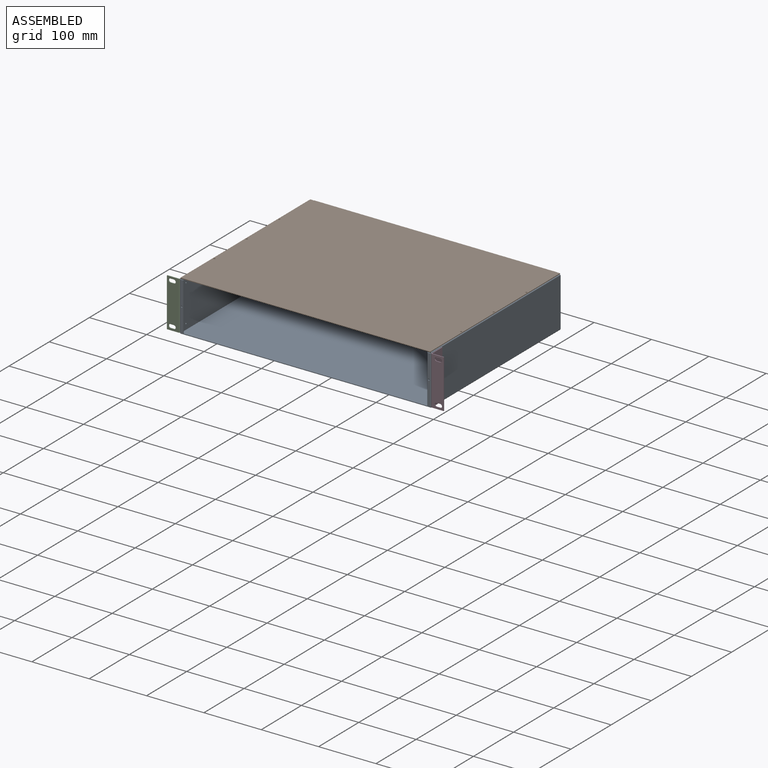
[diagram: assembled view]
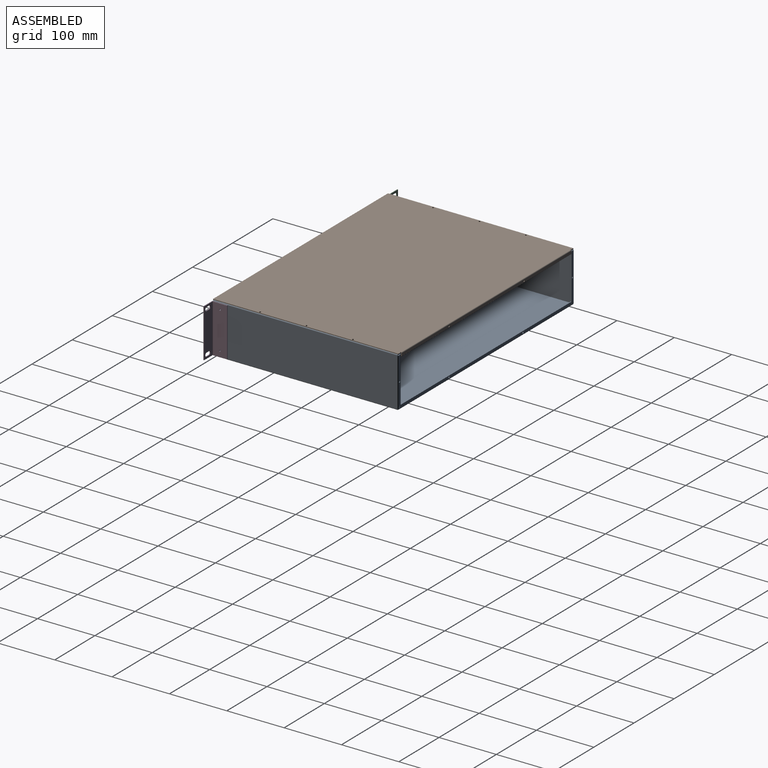
[diagram: assembled view, second angle]
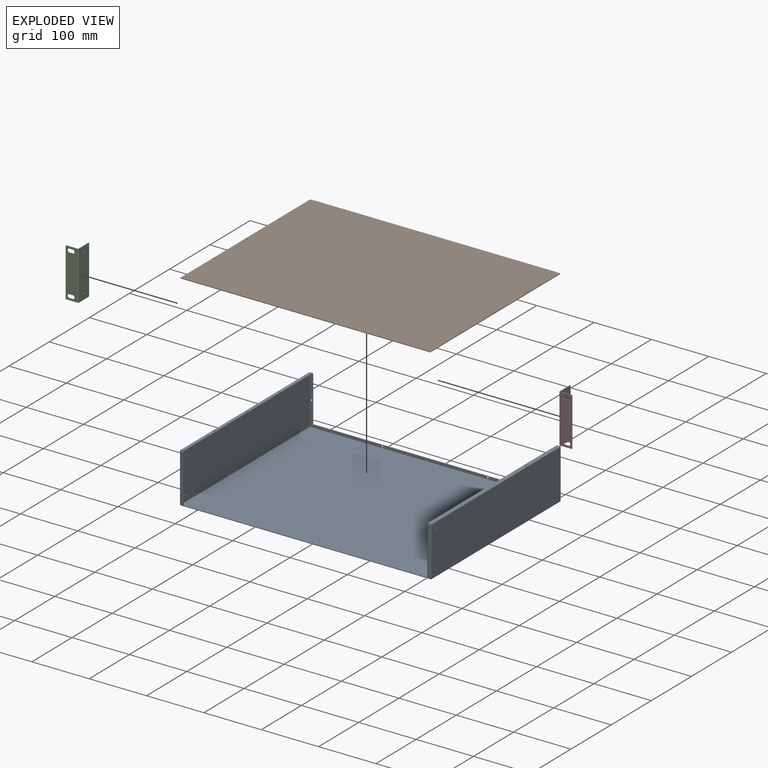
[diagram: exploded view]
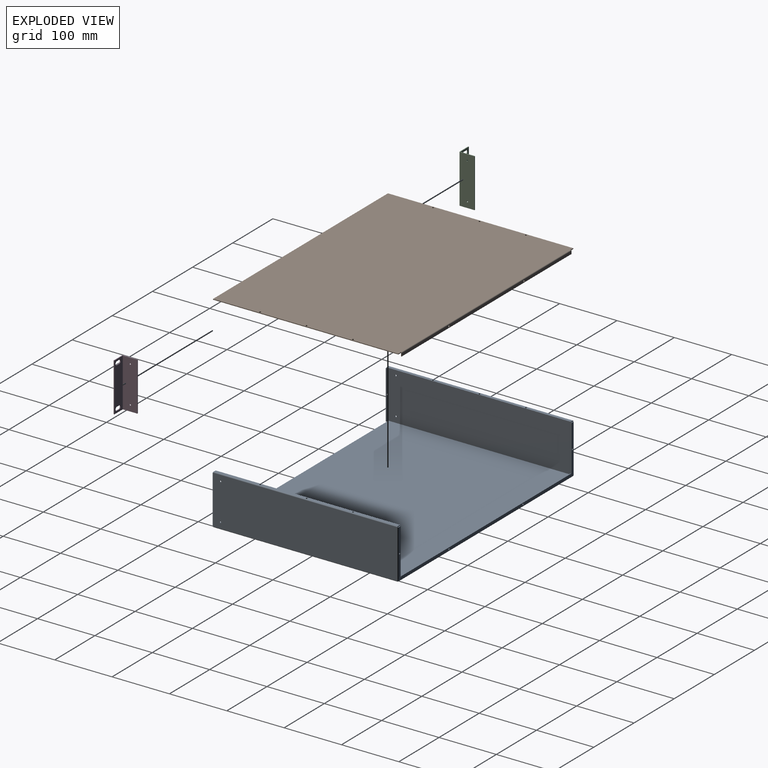
[diagram: exploded view, second angle]
ASSEMBLY  parts=4 mates=3
PART A: 110 faces, bbox 438.2x323.9x87.4 mm
  f0: plane 1.3x0.18mm, normal (0,1,0), area 0.2mm2, adj f19,f32,f33,f87
  f1: plane 1.3x0.03mm, normal (-1,0,0), area 0mm2, adj f5,f6,f7,f24
  f2: plane 1.3x0.18mm, normal (0,1,0), area 0.2mm2, adj f6,f7,f15,f23
  f3: plane 1.3x0.18mm, normal (0,1,0), area 0.2mm2, adj f6,f7,f16,f19
  f4: plane 1.3x0.03mm, normal (1,0,0), area 0mm2, adj f5,f6,f7,f20
  f5: plane 435.53x1.3mm, normal (0,-1,0), area 564.2mm2, adj f1,f4,f6,f7
  f6: plane 435.53x321.23mm, normal (0,0,-1), area 139908.2mm2, adj f1,f2,f3,f4,f5,f17,f21,f25
  f7: plane 435.53x321.23mm, normal (0,0,1), area 139908.2mm2, adj f1,f2,f3,f4,f5,f18,f22,f26
  f8: plane 425.12x1.3mm, normal (0,0,1), area 550.7mm2, adj f9,f12,f13,f14
  f9: plane 5.03x5.03mm, normal (0.71,0,0.71), area 9.2mm2, adj f8,f13,f14,f16
  f10: cylinder r=1.42mm len=2.85mm, axis (0,1,0), area 11.6mm2, adj f13,f14
  f11: cylinder r=1.42mm len=2.85mm, axis (0,1,0), area 11.6mm2, adj f13,f14
  f12: plane 5.03x5.03mm, normal (-0.71,0,0.71), area 9.2mm2, adj f8,f13,f14,f15
  f13: plane 435.17x5.03mm, normal (0,1,0), area 2150.6mm2, adj f8,f9,f10,f11,f12,f17
  f14: plane 435.17x5.03mm, normal (0,-1,0), area 2150.6mm2, adj f8,f9,f10,f11,f12,f18
  f15: plane 1.32x1.32mm, normal (-1,0,0), area 1.4mm2, adj f2,f12,f17,f18
  f16: plane 1.32x1.32mm, normal (1,0,0), area 1.4mm2, adj f3,f9,f17,f18
  f17: cylinder r=1.32mm len=435.17mm, axis (-1,0,0), area 902.9mm2, adj f6,f13,f15,f16
  f18: cylinder r=0.03mm len=435.17mm, axis (-1,0,0), area 17.4mm2, adj f7,f14,f15,f16
  f19: plane 1.32x1.32mm, normal (0,1,0), area 1.4mm2, adj f0,f3,f21,f22
  f20: plane 1.32x1.32mm, normal (0,-1,0), area 1.4mm2, adj f4,f21,f22,f29
  f21: cylinder r=1.32mm len=321.21mm, axis (0,1,0), area 666.4mm2, adj f6,f19,f20,f32
  f22: cylinder r=0.03mm len=321.21mm, axis (0,1,0), area 12.8mm2, adj f7,f19,f20,f33
  f23: plane 1.32x1.32mm, normal (0,1,0), area 1.4mm2, adj f2,f25,f26,f50
  f24: plane 1.32x1.32mm, normal (0,-1,0), area 1.4mm2, adj f1,f25,f26,f53
  f25: cylinder r=1.32mm len=321.21mm, axis (0,1,0), area 666.4mm2, adj f6,f23,f24,f54
  f26: cylinder r=0.03mm len=321.21mm, axis (0,1,0), area 12.8mm2, adj f7,f23,f24,f55
  f27: plane 1.3x0.23mm, normal (0,1,0), area 0.3mm2, adj f32,f33,f44,f86
  f28: plane 1.3x0.23mm, normal (0,-1,0), area 0.3mm2, adj f32,f33,f45,f107
  f29: plane 1.3x0.23mm, normal (0,-1,0), area 0.3mm2, adj f20,f32,f33,f106
  f30: cylinder r=1.27mm len=2.54mm, axis (-1,0,0), area 10.3mm2, adj f32,f33
  f31: cylinder r=1.27mm len=2.54mm, axis (-1,0,0), area 10.3mm2, adj f32,f33
  f32: plane 321.21x84.71mm, normal (1,0,0), area 27199.1mm2, adj f0,f21,f27,f28,f29,f30,f31,f46
  f33: plane 321.21x84.71mm, normal (-1,0,0), area 27199.1mm2, adj f0,f22,f27,f28,f29,f30,f31,f47
  f34: plane 1.3x0.03mm, normal (1,0,0), area 0mm2, adj f36,f42,f43,f45
  f35: plane 321.26x1.3mm, normal (-1,0,0), area 416.2mm2, adj f36,f41,f42,f43
  f36: plane 5.03x1.3mm, normal (0,-1,0), area 6.5mm2, adj f34,f35,f42,f43
  f37: plane 1.3x0.03mm, normal (1,0,0), area 0mm2, adj f41,f42,f43,f44
  f38: cylinder r=1.42mm len=2.85mm, axis (0,0,1), area 11.6mm2, adj f42,f43
  f39: cylinder r=1.42mm len=2.85mm, axis (0,0,1), area 11.6mm2, adj f42,f43
  f40: cylinder r=1.42mm len=2.85mm, axis (0,0,1), area 11.6mm2, adj f42,f43
  f41: plane 5.03x1.3mm, normal (0,1,0), area 6.5mm2, adj f35,f37,f42,f43
  f42: plane 321.26x5.03mm, normal (0,0,1), area 1596.6mm2, adj f34,f35,f36,f37,f38,f39,f40,f41
  f43: plane 321.26x5.03mm, normal (0,0,-1), area 1596.6mm2, adj f34,f35,f36,f37,f38,f39,f40,f41
  f44: plane 1.32x1.32mm, normal (0,1,0), area 1.4mm2, adj f27,f37,f46,f47
  f45: plane 1.32x1.32mm, normal (0,-1,0), area 1.4mm2, adj f28,f34,f46,f47
  f46: cylinder r=1.32mm len=321.21mm, axis (0,1,0), area 666.4mm2, adj f32,f42,f44,f45
  f47: cylinder r=0.03mm len=321.21mm, axis (0,1,0), area 12.8mm2, adj f33,f43,f44,f45
  f48: plane 1.3x0.23mm, normal (0,-1,0), area 0.3mm2, adj f54,f55,f67,f96
  f49: plane 1.3x0.23mm, normal (0,1,0), area 0.3mm2, adj f54,f55,f66,f77
  f50: plane 1.3x0.18mm, normal (0,1,0), area 0.2mm2, adj f23,f54,f55,f76
  f51: cylinder r=1.27mm len=2.54mm, axis (-1,0,0), area 10.3mm2, adj f54,f55
  f52: cylinder r=1.27mm len=2.54mm, axis (-1,0,0), area 10.3mm2, adj f54,f55
  f53: plane 1.3x0.23mm, normal (0,-1,0), area 0.3mm2, adj f24,f54,f55,f97
  f54: plane 321.21x84.71mm, normal (-1,0,0), area 27199.1mm2, adj f25,f48,f49,f50,f51,f52,f53,f68
  f55: plane 321.21x84.71mm, normal (1,0,0), area 27199.1mm2, adj f26,f48,f49,f50,f51,f52,f53,f69
  f56: plane 1.3x0.03mm, normal (-1,0,0), area 0mm2, adj f58,f64,f65,f66
  f57: plane 321.26x1.3mm, normal (1,0,0), area 416.2mm2, adj f58,f63,f64,f65
  f58: plane 5.03x1.3mm, normal (0,1,0), area 6.5mm2, adj f56,f57,f64,f65
  f59: plane 1.3x0.03mm, normal (-1,0,0), area 0mm2, adj f63,f64,f65,f67
  f60: cylinder r=1.42mm len=2.85mm, axis (0,0,1), area 11.6mm2, adj f64,f65
  f61: cylinder r=1.42mm len=2.85mm, axis (0,0,1), area 11.6mm2, adj f64,f65
  f62: cylinder r=1.42mm len=2.85mm, axis (0,0,1), area 11.6mm2, adj f64,f65
  f63: plane 5.03x1.3mm, normal (0,-1,0), area 6.5mm2, adj f57,f59,f64,f65
  f64: plane 321.26x5.03mm, normal (0,0,1), area 1596.6mm2, adj f56,f57,f58,f59,f60,f61,f62,f63
  f65: plane 321.26x5.03mm, normal (0,0,-1), area 1596.6mm2, adj f56,f57,f58,f59,f60,f61,f62,f63
  f66: plane 1.32x1.32mm, normal (0,1,0), area 1.4mm2, adj f49,f56,f68,f69
  f67: plane 1.32x1.32mm, normal (0,-1,0), area 1.4mm2, adj f48,f59,f68,f69
  f68: cylinder r=1.32mm len=321.21mm, axis (0,1,0), area 666.4mm2, adj f54,f64,f66,f67
  f69: cylinder r=0.03mm len=321.21mm, axis (0,1,0), area 12.8mm2, adj f55,f65,f66,f67
  f70: plane 79.27x1.3mm, normal (1,0,0), area 102.7mm2, adj f71,f73,f74,f75
  f71: plane 5.03x5.03mm, normal (0.71,0,-0.71), area 9.2mm2, adj f70,f74,f75,f76
  f72: cylinder r=1.42mm len=2.85mm, axis (0,1,0), area 11.6mm2, adj f74,f75
  f73: plane 5.03x1.3mm, normal (0,0,1), area 6.5mm2, adj f70,f74,f75,f77
  f74: plane 84.3x5.03mm, normal (0,1,0), area 405mm2, adj f70,f71,f72,f73,f78
  f75: plane 84.3x5.03mm, normal (0,-1,0), area 405mm2, adj f70,f71,f72,f73,f79
  f76: plane 1.32x1.32mm, normal (0,0,-1), area 1.4mm2, adj f50,f71,f78,f79
  f77: plane 1.32x1.32mm, normal (0,0,1), area 1.4mm2, adj f49,f73,f78,f79
  f78: cylinder r=1.32mm len=84.3mm, axis (0,0,-1), area 174.9mm2, adj f54,f74,f76,f77
  f79: cylinder r=0.03mm len=84.3mm, axis (0,0,-1), area 3.4mm2, adj f55,f75,f76,f77
  f80: plane 79.27x1.3mm, normal (-1,0,0), area 102.7mm2, adj f81,f83,f84,f85
  f81: plane 5.03x1.3mm, normal (0,0,1), area 6.5mm2, adj f80,f84,f85,f86
  f82: cylinder r=1.42mm len=2.85mm, axis (0,1,0), area 11.6mm2, adj f84,f85
  f83: plane 5.03x5.03mm, normal (-0.71,0,-0.71), area 9.2mm2, adj f80,f84,f85,f87
  f84: plane 84.3x5.03mm, normal (0,1,0), area 405mm2, adj f80,f81,f82,f83,f88
  f85: plane 84.3x5.03mm, normal (0,-1,0), area 405mm2, adj f80,f81,f82,f83,f89
  f86: plane 1.32x1.32mm, normal (0,0,1), area 1.4mm2, adj f27,f81,f88,f89
  f87: plane 1.32x1.32mm, normal (0,0,-1), area 1.4mm2, adj f0,f83,f88,f89
  f88: cylinder r=1.32mm len=84.3mm, axis (0,0,1), area 174.9mm2, adj f32,f84,f86,f87
  f89: cylinder r=0.03mm len=84.3mm, axis (0,0,1), area 3.4mm2, adj f33,f85,f86,f87
  f90: plane 84.25x1.3mm, normal (1,0,0), area 109.1mm2, adj f91,f93,f94,f95
  f91: plane 5.03x1.3mm, normal (0,0,1), area 6.5mm2, adj f90,f94,f95,f96
  f92: cylinder r=1.42mm len=2.85mm, axis (0,-1,0), area 11.6mm2, adj f94,f95
  f93: plane 5.03x1.3mm, normal (0,0,-1), area 6.5mm2, adj f90,f94,f95,f97
  f94: plane 84.25x5.03mm, normal (0,-1,0), area 417.4mm2, adj f90,f91,f92,f93,f98
  f95: plane 84.25x5.03mm, normal (0,1,0), area 417.4mm2, adj f90,f91,f92,f93,f99
  f96: plane 1.32x1.32mm, normal (0,0,1), area 1.4mm2, adj f48,f91,f98,f99
  f97: plane 1.32x1.32mm, normal (0,0,-1), area 1.4mm2, adj f53,f93,f98,f99
  f98: cylinder r=1.32mm len=84.25mm, axis (0,0,1), area 174.8mm2, adj f54,f94,f96,f97
  f99: cylinder r=0.03mm len=84.25mm, axis (0,0,1), area 3.4mm2, adj f55,f95,f96,f97
  f100: plane 84.25x1.3mm, normal (-1,0,0), area 109.1mm2, adj f101,f103,f104,f105
  f101: plane 5.03x1.3mm, normal (0,0,-1), area 6.5mm2, adj f100,f104,f105,f106
  f102: cylinder r=1.42mm len=2.85mm, axis (0,-1,0), area 11.6mm2, adj f104,f105
  f103: plane 5.03x1.3mm, normal (0,0,1), area 6.5mm2, adj f100,f104,f105,f107
  f104: plane 84.25x5.03mm, normal (0,-1,0), area 417.4mm2, adj f100,f101,f102,f103,f108
  f105: plane 84.25x5.03mm, normal (0,1,0), area 417.4mm2, adj f100,f101,f102,f103,f109
  f106: plane 1.32x1.32mm, normal (0,0,-1), area 1.4mm2, adj f29,f101,f108,f109
  f107: plane 1.32x1.32mm, normal (0,0,1), area 1.4mm2, adj f28,f103,f108,f109
  f108: cylinder r=1.32mm len=84.25mm, axis (0,0,-1), area 174.8mm2, adj f32,f104,f106,f107
  f109: cylinder r=0.03mm len=84.25mm, axis (0,0,-1), area 3.4mm2, adj f33,f105,f106,f107
PART B: 30 faces, bbox 435.6x324.6x6.4 mm
  f0: plane 4.97x1.3mm, normal (0,1,0), area 6.4mm2, adj f1,f2,f6,f18
  f1: plane 435.58x323.24mm, normal (0,0,1), area 140756.8mm2, adj f0,f3,f4,f5,f6,f7,f8,f9
  f2: plane 435.58x323.24mm, normal (0,0,-1), area 140756.8mm2, adj f0,f3,f4,f5,f6,f7,f8,f9
  f3: plane 4.97x1.3mm, normal (0,1,0), area 6.4mm2, adj f1,f2,f4,f14
  f4: plane 323.24x1.3mm, normal (-1,0,0), area 418.7mm2, adj f1,f2,f3,f5
  f5: plane 435.58x1.3mm, normal (0,-1,0), area 564.3mm2, adj f1,f2,f4,f6
  f6: plane 323.24x1.3mm, normal (1,0,0), area 418.7mm2, adj f0,f1,f2,f5
  f7: cylinder r=1.46mm len=2.92mm, axis (0,0,1), area 11.9mm2, adj f1,f2
  f8: cylinder r=1.46mm len=2.92mm, axis (0,0,1), area 11.9mm2, adj f1,f2
  f9: cylinder r=1.46mm len=2.92mm, axis (0,0,1), area 11.9mm2, adj f1,f2
  f10: cylinder r=1.46mm len=2.92mm, axis (0,0,1), area 11.9mm2, adj f1,f2
  f11: cylinder r=1.46mm len=2.92mm, axis (0,0,1), area 11.9mm2, adj f1,f2
  f12: cylinder r=1.46mm len=2.92mm, axis (0,0,1), area 11.9mm2, adj f1,f2
  f13: cylinder r=0.69mm len=1.38mm, axis (0,0,-1), area 2.8mm2, adj f1,f2,f14,f15
  f14: plane 1.3x0.03mm, normal (1,0,0), area 0mm2, adj f1,f2,f3,f13
  f15: plane 1.3x0.03mm, normal (-1,0,0), area 0mm2, adj f1,f2,f13,f26
  f16: cylinder r=0.69mm len=1.38mm, axis (0,0,-1), area 2.8mm2, adj f1,f2,f17,f18
  f17: plane 1.3x0.03mm, normal (1,0,0), area 0mm2, adj f1,f2,f16,f27
  f18: plane 1.3x0.03mm, normal (-1,0,0), area 0mm2, adj f0,f1,f2,f16
  f19: plane 422.88x1.3mm, normal (0,0,-1), area 547.8mm2, adj f20,f23,f24,f25
  f20: plane 5.03x1.3mm, normal (-1,0,0), area 6.5mm2, adj f19,f24,f25,f26
  f21: cylinder r=1.42mm len=2.85mm, axis (0,1,0), area 11.6mm2, adj f24,f25
  f22: cylinder r=1.42mm len=2.85mm, axis (0,1,0), area 11.6mm2, adj f24,f25
  f23: plane 5.03x1.3mm, normal (1,0,0), area 6.5mm2, adj f19,f24,f25,f27
  f24: plane 422.88x5.03mm, normal (0,1,0), area 2114.1mm2, adj f19,f20,f21,f22,f23,f28
  f25: plane 422.88x5.03mm, normal (0,-1,0), area 2114.1mm2, adj f19,f20,f21,f22,f23,f29
  f26: plane 1.32x1.32mm, normal (-1,0,0), area 1.4mm2, adj f15,f20,f28,f29
  f27: plane 1.32x1.32mm, normal (1,0,0), area 1.4mm2, adj f17,f23,f28,f29
  f28: cylinder r=1.32mm len=422.88mm, axis (-1,0,0), area 877.4mm2, adj f1,f24,f26,f27
  f29: cylinder r=0.03mm len=422.88mm, axis (-1,0,0), area 16.9mm2, adj f2,f25,f26,f27
PART C: 26 faces, bbox 22.2x26.7x84.8 mm
  f0: plane 25.37x1.3mm, normal (0,0,-1), area 32.9mm2, adj f1,f5,f6,f22
  f1: plane 84.76x1.3mm, normal (0,1,0), area 109.8mm2, adj f0,f2,f5,f6
  f2: plane 25.37x1.3mm, normal (0,0,1), area 32.9mm2, adj f1,f5,f6,f23
  f3: cylinder r=1.27mm len=2.54mm, axis (-1,0,0), area 10.3mm2, adj f5,f6
  f4: cylinder r=1.27mm len=2.54mm, axis (-1,0,0), area 10.3mm2, adj f5,f6
  f5: plane 84.76x25.37mm, normal (1,0,0), area 2140.6mm2, adj f0,f1,f2,f3,f4,f24
  f6: plane 84.76x25.37mm, normal (-1,0,0), area 2140.6mm2, adj f0,f1,f2,f3,f4,f25
  f7: cylinder r=3.17mm len=6.35mm, axis (0,-1,0), area 12.9mm2, adj f8,f17,f18,f19
  f8: plane 6.1x1.3mm, normal (0,0,1), area 7.9mm2, adj f7,f9,f18,f19
  f9: cylinder r=3.17mm len=6.35mm, axis (0,-1,0), area 12.9mm2, adj f8,f17,f18,f19
  f10: plane 6.1x1.3mm, normal (0,0,-1), area 7.9mm2, adj f11,f16,f18,f19
  f11: cylinder r=3.17mm len=6.35mm, axis (0,-1,0), area 12.9mm2, adj f10,f12,f18,f19
  f12: plane 6.1x1.3mm, normal (0,0,1), area 7.9mm2, adj f11,f16,f18,f19
  f13: plane 84.51x1.3mm, normal (-1,0,0), area 109.5mm2, adj f18,f19,f20,f21
  f14: plane 20.76x1.3mm, normal (0,0,-1), area 26.9mm2, adj f18,f19,f20,f22
  f15: plane 20.76x1.3mm, normal (0,0,1), area 26.9mm2, adj f18,f19,f21,f23
  f16: cylinder r=3.17mm len=6.35mm, axis (0,-1,0), area 12.9mm2, adj f10,f12,f18,f19
  f17: plane 6.1x1.3mm, normal (0,0,-1), area 7.9mm2, adj f7,f9,f18,f19
  f18: plane 84.76x20.89mm, normal (0,-1,0), area 1630mm2, adj f7,f8,f9,f10,f11,f12,f13,f14
  f19: plane 84.76x20.89mm, normal (0,1,0), area 1630mm2, adj f7,f8,f9,f10,f11,f12,f13,f14
  f20: cylinder r=0.13mm len=1.3mm, axis (0,-1,0), area 0.3mm2, adj f13,f14,f18,f19
  f21: cylinder r=0.13mm len=1.3mm, axis (0,1,0), area 0.3mm2, adj f13,f15,f18,f19
  f22: plane 1.32x1.32mm, normal (0,0,-1), area 1.4mm2, adj f0,f14,f24,f25
  f23: plane 1.32x1.32mm, normal (0,0,1), area 1.4mm2, adj f2,f15,f24,f25
  f24: cylinder r=1.32mm len=84.76mm, axis (0,0,-1), area 175.9mm2, adj f5,f18,f22,f23
  f25: cylinder r=0.03mm len=84.76mm, axis (0,0,-1), area 3.4mm2, adj f6,f19,f22,f23
PART D: 26 faces, bbox 22.2x26.7x84.8 mm
  f0: plane 25.37x1.3mm, normal (0,0,1), area 32.9mm2, adj f1,f5,f6,f23
  f1: plane 84.76x1.3mm, normal (0,1,0), area 109.8mm2, adj f0,f4,f5,f6
  f2: cylinder r=1.27mm len=2.54mm, axis (1,0,0), area 10.3mm2, adj f5,f6
  f3: cylinder r=1.27mm len=2.54mm, axis (1,0,0), area 10.3mm2, adj f5,f6
  f4: plane 25.37x1.3mm, normal (0,0,-1), area 32.9mm2, adj f1,f5,f6,f22
  f5: plane 84.76x25.37mm, normal (-1,0,0), area 2140.6mm2, adj f0,f1,f2,f3,f4,f24
  f6: plane 84.76x25.37mm, normal (1,0,0), area 2140.6mm2, adj f0,f1,f2,f3,f4,f25
  f7: plane 6.1x1.3mm, normal (0,0,1), area 7.9mm2, adj f8,f17,f18,f19
  f8: cylinder r=3.17mm len=6.35mm, axis (0,1,0), area 12.9mm2, adj f7,f9,f18,f19
  f9: plane 6.1x1.3mm, normal (0,0,-1), area 7.9mm2, adj f8,f17,f18,f19
  f10: plane 84.51x1.3mm, normal (1,0,0), area 109.5mm2, adj f18,f19,f20,f21
  f11: plane 20.76x1.3mm, normal (0,0,1), area 26.9mm2, adj f18,f19,f21,f23
  f12: cylinder r=3.17mm len=6.35mm, axis (0,1,0), area 12.9mm2, adj f13,f15,f18,f19
  f13: plane 6.1x1.3mm, normal (0,0,-1), area 7.9mm2, adj f12,f14,f18,f19
  f14: cylinder r=3.17mm len=6.35mm, axis (0,1,0), area 12.9mm2, adj f13,f15,f18,f19
  f15: plane 6.1x1.3mm, normal (0,0,1), area 7.9mm2, adj f12,f14,f18,f19
  f16: plane 20.76x1.3mm, normal (0,0,-1), area 26.9mm2, adj f18,f19,f20,f22
  f17: cylinder r=3.17mm len=6.35mm, axis (0,1,0), area 12.9mm2, adj f7,f9,f18,f19
  f18: plane 84.76x20.89mm, normal (0,-1,0), area 1630mm2, adj f7,f8,f9,f10,f11,f12,f13,f14
  f19: plane 84.76x20.89mm, normal (0,1,0), area 1630mm2, adj f7,f8,f9,f10,f11,f12,f13,f14
  f20: cylinder r=0.13mm len=1.3mm, axis (0,-1,0), area 0.3mm2, adj f10,f16,f18,f19
  f21: cylinder r=0.13mm len=1.3mm, axis (0,1,0), area 0.3mm2, adj f10,f11,f18,f19
  f22: plane 1.32x1.32mm, normal (0,0,-1), area 1.4mm2, adj f4,f16,f24,f25
  f23: plane 1.32x1.32mm, normal (0,0,1), area 1.4mm2, adj f0,f11,f24,f25
  f24: cylinder r=1.32mm len=84.76mm, axis (0,0,-1), area 175.9mm2, adj f5,f18,f22,f23
  f25: cylinder r=0.03mm len=84.76mm, axis (0,0,-1), area 3.4mm2, adj f6,f19,f22,f23
PLACE A t=(0,0.01,0)mm
PLACE B t=(0,0.01,41.61)mm
PLACE C t=(-1.31,-84.39,-0.03)mm
PLACE D t=(1.31,-84.39,-0.03)mm
MATE fastened D.f3 <-> A.f30  axis (-1,0,0) through (219.09,-147.89,74.57)mm
MATE fastened A.f60 <-> B.f7  axis (0,0,1) through (-215.25,-80.95,86.06)mm
MATE fastened A.f30 <-> C.f4  axis (-1,0,0) through (-219.09,-147.89,74.57)mm
